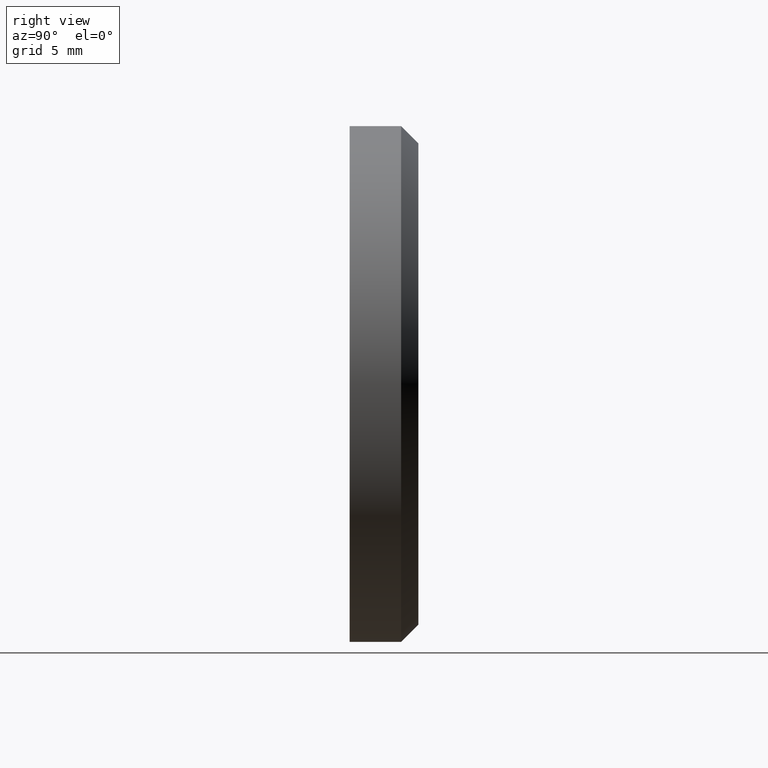
[diagram: clean part render]
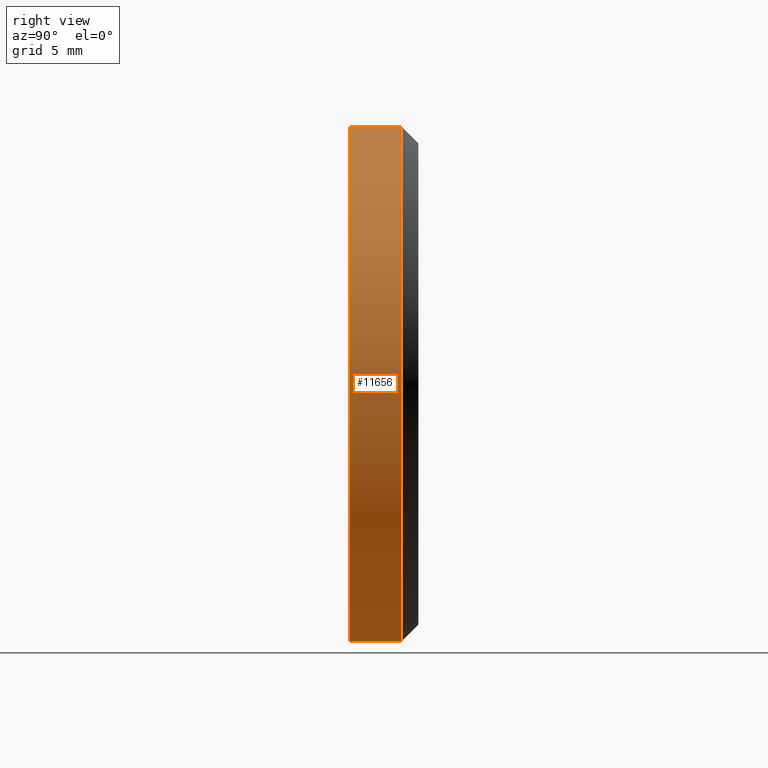
[diagram: same view with one face highlighted and labeled with its STEP entity id]
A machine part, right view. The second image highlights one B-rep face of the part: STEP entity #11656.
In plain terms, the highlighted cylindrical surface (partial cylindrical patch) has radius 15 mm, axis along (-0, -1, -0).
Its self-contained STEP definition (entity closure, byte-faithful):
#864 = CARTESIAN_POINT ( 'NONE',  ( 0.000000000000000000, 4.000000000000000000, -15.00000000000000000 ) ) ;
#1311 = LINE ( 'NONE', #864, #8205 ) ;
#1775 = EDGE_CURVE ( 'NONE', #9419, #6575, #13170, .T. ) ;
#1906 = CYLINDRICAL_SURFACE ( 'NONE', #12339, 15.00000000000000000 ) ;
#1931 = DIRECTION ( 'NONE',  ( 0.000000000000000000, 0.000000000000000000, 1.000000000000000000 ) ) ;
#2662 = DIRECTION ( 'NONE',  ( -0.000000000000000000, -1.000000000000000000, -0.000000000000000000 ) ) ;
#2721 = EDGE_CURVE ( 'NONE', #6092, #6575, #1311, .T. ) ;
#3167 = DIRECTION ( 'NONE',  ( 0.000000000000000000, -1.000000000000000000, 0.000000000000000000 ) ) ;
#3457 = CIRCLE ( 'NONE', #8043, 15.00000000000000000 ) ;
#3600 = DIRECTION ( 'NONE',  ( 0.000000000000000000, 0.000000000000000000, 1.000000000000000000 ) ) ;
#3653 = CARTESIAN_POINT ( 'NONE',  ( 0.000000000000000000, 0.000000000000000000, 0.000000000000000000 ) ) ;
#4010 = AXIS2_PLACEMENT_3D ( 'NONE', #3653, #9641, #3600 ) ;
#4486 = LINE ( 'NONE', #6177, #13828 ) ;
#5421 = DIRECTION ( 'NONE',  ( -0.000000000000000000, -1.000000000000000000, -0.000000000000000000 ) ) ;
#5471 = CARTESIAN_POINT ( 'NONE',  ( 0.000000000000000000, 4.000000000000000000, 0.000000000000000000 ) ) ;
#5694 = ORIENTED_EDGE ( 'NONE', *, *, #8256, .T. ) ;
#5813 = ORIENTED_EDGE ( 'NONE', *, *, #1775, .T. ) ;
#6092 = VERTEX_POINT ( 'NONE', #12982 ) ;
#6177 = CARTESIAN_POINT ( 'NONE',  ( 1.836970198721029589E-15, 4.000000000000000000, 15.00000000000000000 ) ) ;
#6575 = VERTEX_POINT ( 'NONE', #11081 ) ;
#8043 = AXIS2_PLACEMENT_3D ( 'NONE', #10584, #3167, #1931 ) ;
#8205 = VECTOR ( 'NONE', #8249, 1000.000000000000000 ) ;
#8249 = DIRECTION ( 'NONE',  ( -0.000000000000000000, -1.000000000000000000, -0.000000000000000000 ) ) ;
#8256 = EDGE_CURVE ( 'NONE', #8459, #9419, #4486, .T. ) ;
#8390 = FACE_OUTER_BOUND ( 'NONE', #13429, .T. ) ;
#8459 = VERTEX_POINT ( 'NONE', #10656 ) ;
#9419 = VERTEX_POINT ( 'NONE', #11204 ) ;
#9489 = EDGE_CURVE ( 'NONE', #6092, #8459, #3457, .T. ) ;
#9641 = DIRECTION ( 'NONE',  ( 0.000000000000000000, 1.000000000000000000, 0.000000000000000000 ) ) ;
#10517 = ORIENTED_EDGE ( 'NONE', *, *, #9489, .T. ) ;
#10584 = CARTESIAN_POINT ( 'NONE',  ( 0.000000000000000000, 2.999999999999985345, 0.000000000000000000 ) ) ;
#10656 = CARTESIAN_POINT ( 'NONE',  ( 1.836970198721029589E-15, 2.999999999999985345, 15.00000000000000000 ) ) ;
#11081 = CARTESIAN_POINT ( 'NONE',  ( 0.000000000000000000, 0.000000000000000000, -15.00000000000000000 ) ) ;
#11204 = CARTESIAN_POINT ( 'NONE',  ( 1.836970198721029589E-15, 0.000000000000000000, 15.00000000000000000 ) ) ;
#11656 = ADVANCED_FACE ( 'NONE', ( #8390 ), #1906, .T. ) ;
#12339 = AXIS2_PLACEMENT_3D ( 'NONE', #5471, #5421, #13950 ) ;
#12982 = CARTESIAN_POINT ( 'NONE',  ( 0.000000000000000000, 2.999999999999985345, -15.00000000000000000 ) ) ;
#13170 = CIRCLE ( 'NONE', #4010, 15.00000000000000000 ) ;
#13425 = ORIENTED_EDGE ( 'NONE', *, *, #2721, .F. ) ;
#13429 = EDGE_LOOP ( 'NONE', ( #10517, #5694, #5813, #13425 ) ) ;
#13828 = VECTOR ( 'NONE', #2662, 1000.000000000000000 ) ;
#13950 = DIRECTION ( 'NONE',  ( 0.000000000000000000, 0.000000000000000000, -1.000000000000000000 ) ) ;